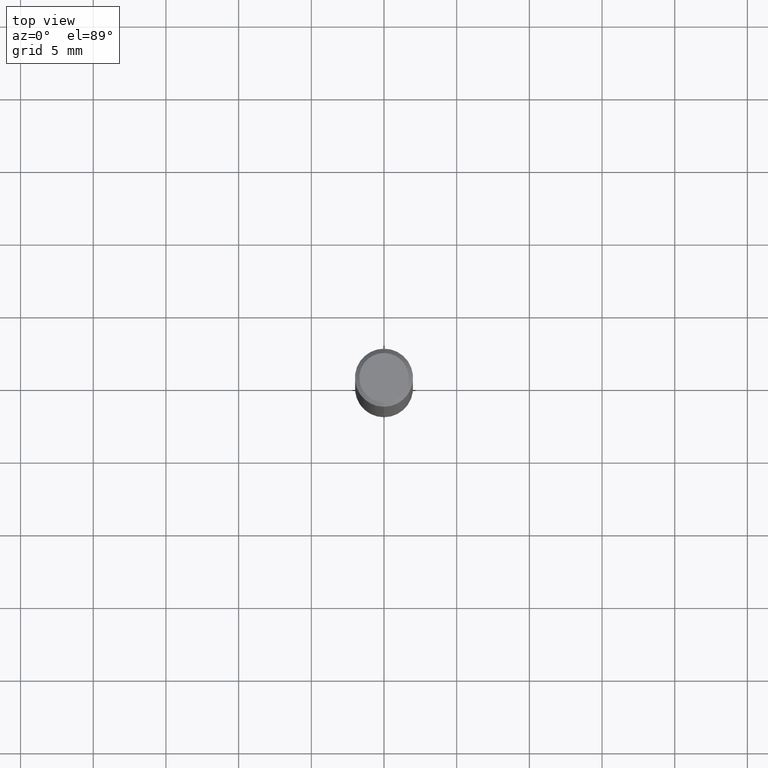
[diagram: clean part render]
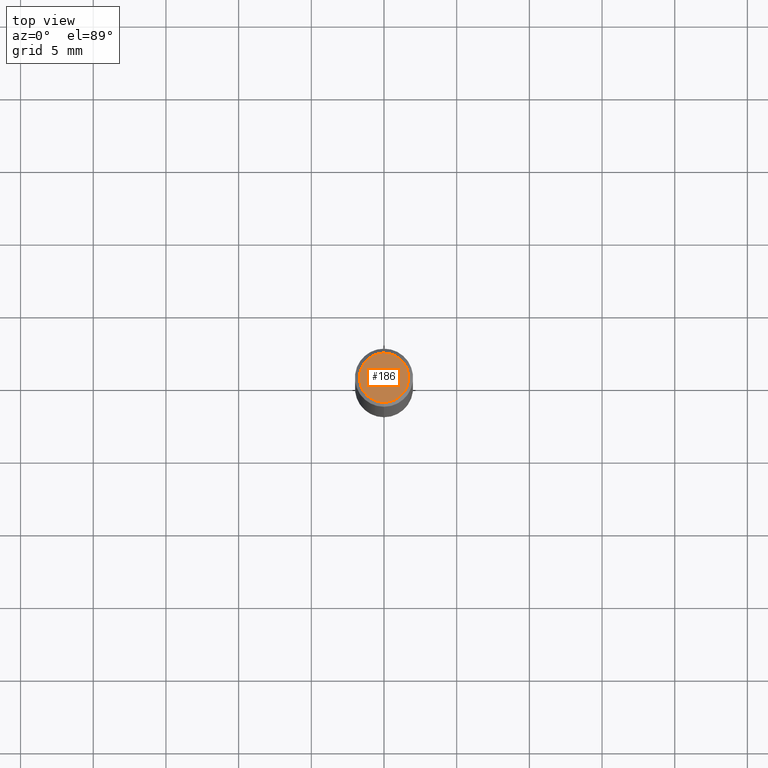
[diagram: same view with one face highlighted and labeled with its STEP entity id]
A machine part, top view. The second image highlights one B-rep face of the part: STEP entity #186.
In plain terms, the highlighted planar face has unit normal (-0, 0, 1).
Its self-contained STEP definition (entity closure, byte-faithful):
#114=EDGE_CURVE('',#192,#162,#271,.T.);
#124=EDGE_CURVE('',#162,#192,#281,.T.);
#162=VERTEX_POINT('',#323);
#186=ADVANCED_FACE('',(#350),#351,.T.);
#192=VERTEX_POINT('',#358);
#271=CIRCLE('',#438,1.7);
#281=CIRCLE('',#452,1.7);
#323=CARTESIAN_POINT('',(0.0,1.7,0.0));
#350=FACE_OUTER_BOUND('',#535,.T.);
#351=PLANE('',#536);
#358=CARTESIAN_POINT('',(2.08183080149804E-016,-1.7,0.0));
#438=AXIS2_PLACEMENT_3D('',#642,#643,#644);
#452=AXIS2_PLACEMENT_3D('',#654,#655,#656);
#535=EDGE_LOOP('',(#738,#739));
#536=AXIS2_PLACEMENT_3D('',#740,#741,#742);
#642=CARTESIAN_POINT('',(0.0,0.0,0.0));
#643=DIRECTION('',(0.0,0.0,-1.0));
#644=DIRECTION('',(0.0,1.0,0.0));
#654=CARTESIAN_POINT('',(0.0,0.0,0.0));
#655=DIRECTION('',(0.0,0.0,-1.0));
#656=DIRECTION('',(0.0,1.0,0.0));
#738=ORIENTED_EDGE('',*,*,#124,.F.);
#739=ORIENTED_EDGE('',*,*,#114,.F.);
#740=CARTESIAN_POINT('',(0.0,0.85,0.0));
#741=DIRECTION('',(-0.0,0.0,1.0));
#742=DIRECTION('',(0.0,-1.0,0.0));